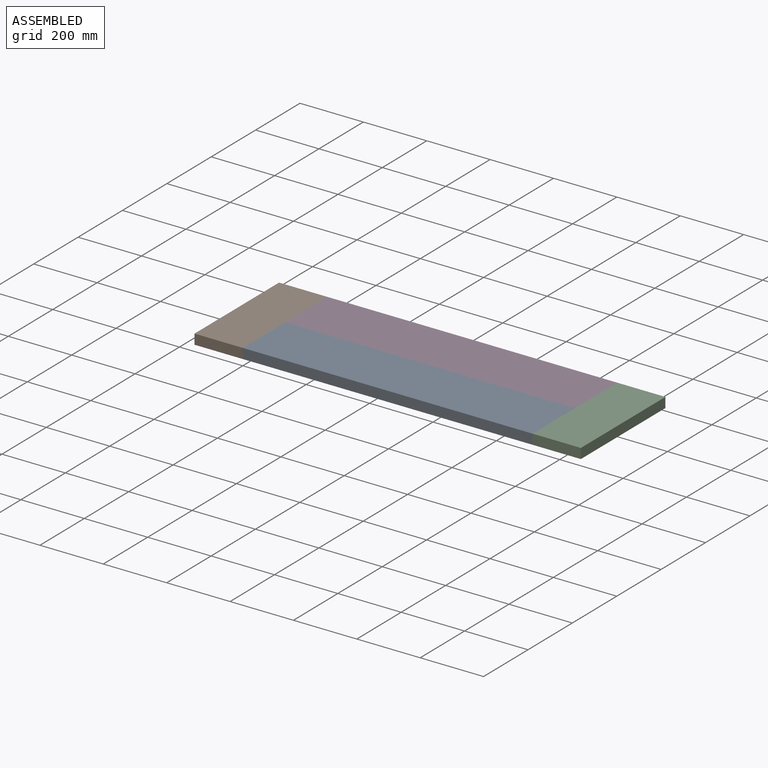
[diagram: assembled view]
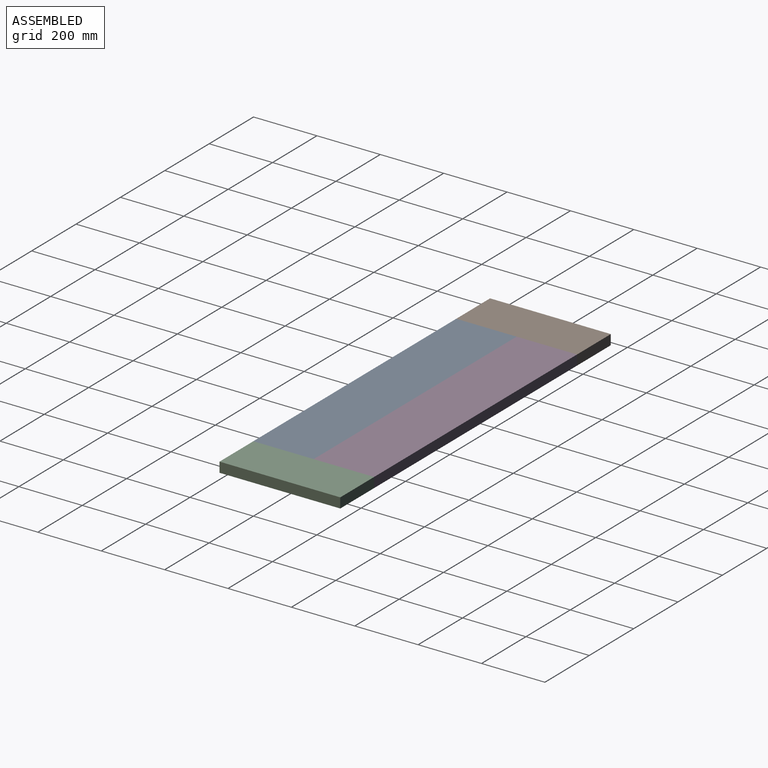
[diagram: assembled view, second angle]
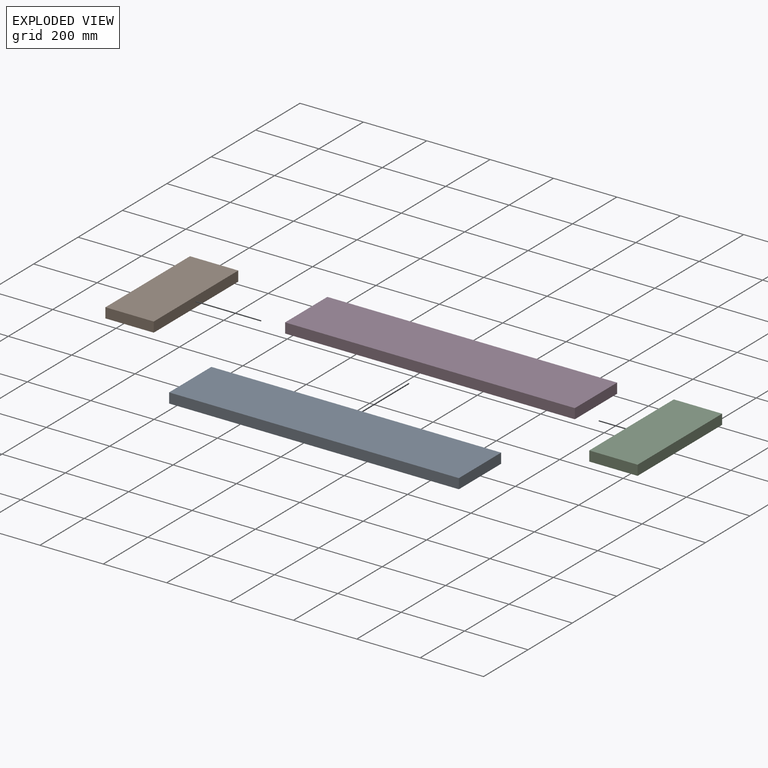
[diagram: exploded view]
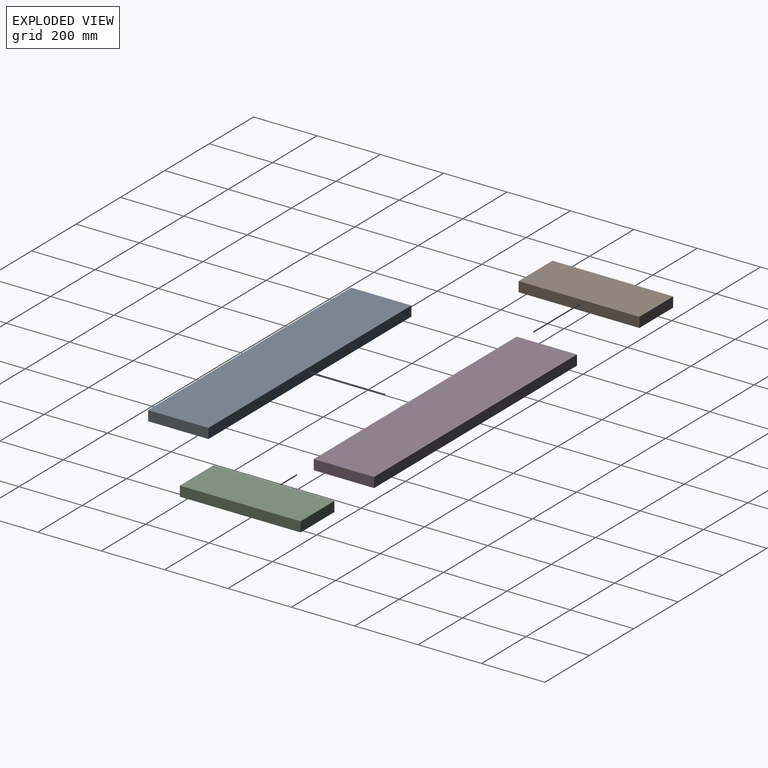
[diagram: exploded view, second angle]
ASSEMBLY  parts=4 mates=3
PART A: 6 faces, bbox 190.5x31.8x914.4 mm
  f0: plane 914.4x31.75mm, normal (-1,0,0), area 29032.2mm2, adj f1,f3,f4,f5
  f1: plane 914.4x190.5mm, normal (0,-1,0), area 174193.2mm2, adj f0,f2,f4,f5
  f2: plane 914.4x31.75mm, normal (1,0,0), area 29032.2mm2, adj f1,f3,f4,f5
  f3: plane 914.4x190.5mm, normal (0,1,0), area 174193.2mm2, adj f0,f2,f4,f5
  f4: plane 190.5x31.75mm, normal (0,0,1), area 6048.4mm2, adj f0,f1,f2,f3
  f5: plane 190.5x31.75mm, normal (0,0,-1), area 6048.4mm2, adj f0,f1,f2,f3
PART B: 6 faces, bbox 152.4x31.8x381 mm
  f0: plane 381x31.75mm, normal (-1,0,0), area 12096.8mm2, adj f1,f3,f4,f5
  f1: plane 381x152.4mm, normal (0,-1,0), area 58064.4mm2, adj f0,f2,f4,f5
  f2: plane 381x31.75mm, normal (1,0,0), area 12096.7mm2, adj f1,f3,f4,f5
  f3: plane 381x152.4mm, normal (0,1,0), area 58064.4mm2, adj f0,f2,f4,f5
  f4: plane 152.4x31.75mm, normal (0,0,1), area 4838.7mm2, adj f0,f1,f2,f3
  f5: plane 152.4x31.75mm, normal (0,0,-1), area 4838.7mm2, adj f0,f1,f2,f3
PART C: same geometry as B
PART D: same geometry as A
PLACE A rot(axis=(-0.58,0.58,-0.58),120deg) t=(0,514.35,31.75)mm
PLACE B rot(axis=(1,0,0),90deg) t=(-692.15,381,0)mm
PLACE C rot(axis=(0,0.71,-0.71),180deg) t=(1606.55,381,31.75)mm
PLACE D rot(axis=(0.58,0.58,0.58),120deg) t=(0,-133.35,0)mm
MATE fastened B.f2 <-> A.f5  axis (1,0,0) through (0,0,15.88)mm
MATE fastened C.f2 <-> A.f4  axis (-1,0,0) through (914.4,0,15.88)mm
MATE fastened D.f0 <-> A.f0  axis (0,-1,0) through (0,190.5,15.87)mm
